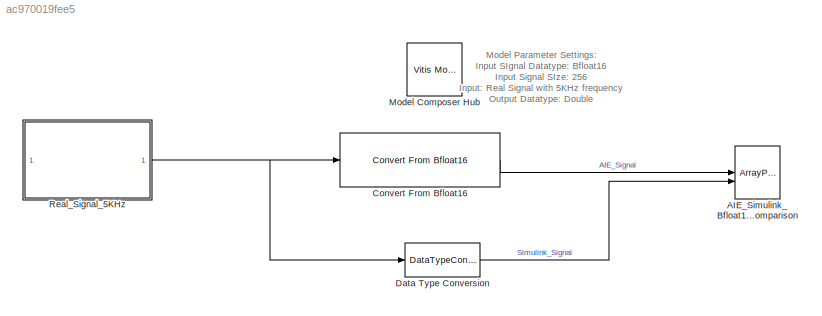
MODEL slx_ac970019fee5
KIND model
CONFIG AbsTol = auto
CONFIG EnableMultiTasking = off
CONFIG FixedStep = auto
CONFIG MaxStep = auto
CONFIG MinStep = auto
CONFIG RelTol = 1e-3
CONFIG SampleTimeConstraint = Unconstrained
CONFIG SolverName = VariableStepAuto
CONFIG StartTime = 0.0
CONFIG StopTime = 1
BLOCK [ArrayPlot] AIE_Simulink_Bfloat16_Comparison
  DefaultConfigurationName = dsp.scopes.ArrayPlotBlockSpecification
  GraphicalSettings = {"Style":{"BackgroundColor":[0.15686274509803921,0.15686274509803921,0.15686274509803921],"AxesColor":[0,0,0],"LabelsColor":[0.68627450980392157,0.68627450980392157,0.68627450980392157],"PreserveColors":false,"Visible":[true,true],"LineStyle":["-","-"],"LineColor":[[0.30196078431372547,0.74509803921568629,0.93333333333333335],[1,1,0]],"LineWidth":[1,1.5],"Marker":["none","none"],"FontSize":"small"...<+507ch>
  NumInputPorts = 2
  PlotType = Line
  ScopeFrameLocation = window
  ShowLegend = on
  WasSavedAsWebScope = on
  WindowPosition = [1.000000,6.000000,1274.000000,655.000000,]
  YLimits = [-1.25,1.25]
BLOCK [Reference] Convert From Bfloat16  REF=aieUtilities/Convert From Bfloat16
  SourceBlock = aieUtilities/Convert From Bfloat16
  SourceType = Convert From Bfloat16
BLOCK [DataTypeConversion] Data Type Conversion
  OutDataTypeStr = double
  RndMeth = Floor
  SaturateOnIntegerOverflow = off
BLOCK [Reference] Model Composer Hub  REF=vmcUtilities/Vitis Model Composer Hub
  SourceBlock = vmcUtilities/Vitis Model Composer Hub
  SourceType = VMC Hub
  Tag = genX
  UserDataPersistent = on
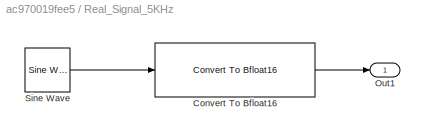
BLOCK [SubSystem] Real_Signal_5KHz
BLOCK [Reference] Real_Signal_5KHz/Convert To Bfloat16  REF=aieUtilities/Convert To Bfloat16
  SourceBlock = aieUtilities/Convert To Bfloat16
  SourceType = Convert To Bfloat16
BLOCK [Outport] Real_Signal_5KHz/Out1
BLOCK [Reference] Real_Signal_5KHz/Sine Wave  REF=dspsrcs4/Sine Wave
  SourceBlock = dspsrcs4/Sine Wave
  SourceType = Sine Wave
ANNOTATION (root): Model Parameter Settings: Input SIgnal Datatype: Bfloat16 Input Signal SIze: 256 Input: Real Signal with 5KHz frequency Output Datatype: Double
LINE Convert From Bfloat16:1 -> AIE_Simulink_Bfloat16_Comparison:1
LINE Data Type Conversion:1 -> AIE_Simulink_Bfloat16_Comparison:2
LINE Real_Signal_5KHz/Convert To Bfloat16:1 -> Real_Signal_5KHz/Out1:1
LINE Real_Signal_5KHz/Sine Wave:1 -> Real_Signal_5KHz/Convert To Bfloat16:1
NET Real_Signal_5KHz:1 -> Convert From Bfloat16:1, Data Type Conversion:1
note: NET lines group one-source signal fan-out (src -> all destinations, sorted); 1:1 wires keep LINE
